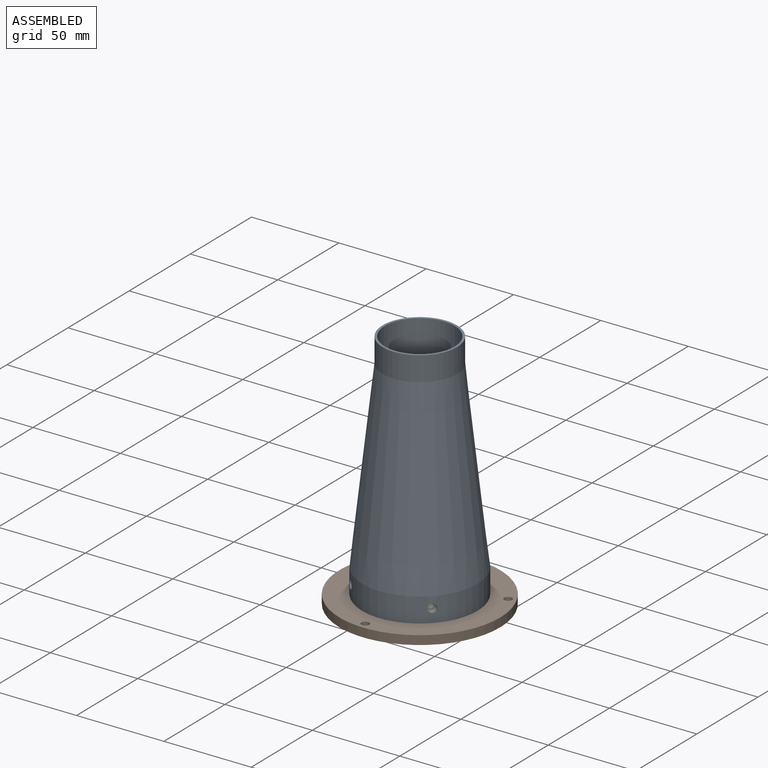
[diagram: assembled view]
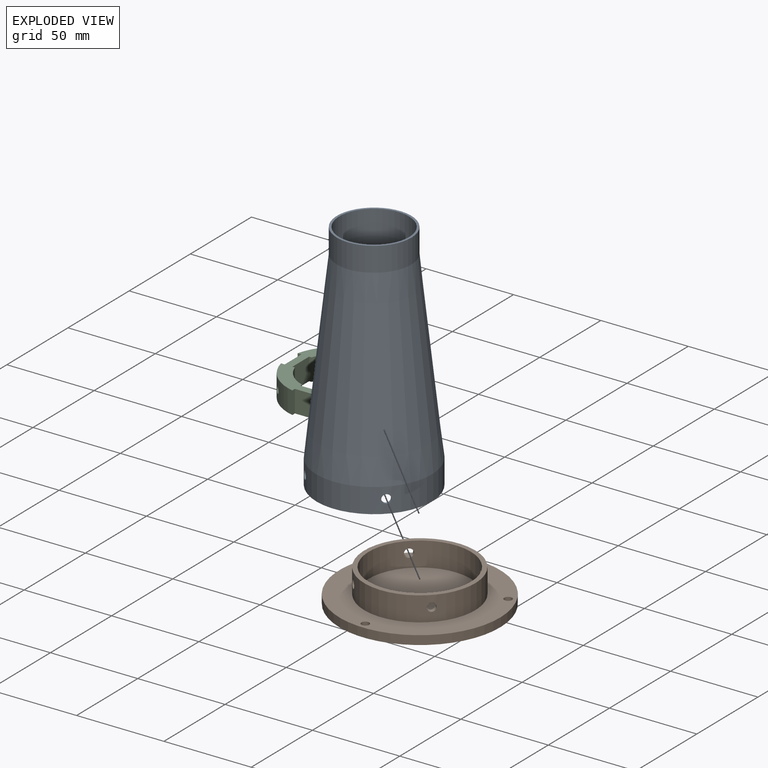
[diagram: exploded view]
GUIDED TOUR — MATED ASSEMBLY (Onshape document 5718db50e4b03b300af6a000, AutoMate assembly 5718db50e4b03b300af6a000_2acc3f7f72f55cf01bb2b59f_ec2c4723e21bfdde87397d73_default)

This assembly has 3 components, labeled P0..P2 below (a component is one placed occurrence of a part; the same part can appear more than once), held together by 4 mates. A mate is a constraint between two components; its type names the relative motion it leaves free:
  CYLINDRICAL — leaves both rotation about and translation along the listed axis free.
Axis/direction vectors are unit vectors and 'through' points are millimeter coordinates, both in the assembly's world frame.

MATES
  1. CYLINDRICAL "Cylindrical 2": P1 <-> P2, axis (0.707, -0.707, 0.000) through (-13.35, -33.52, -79.23) mm
  2. CYLINDRICAL "Cylindrical 3": P0 <-> P1, axis (-0.707, 0.707, 0.000) through (-12.46, -34.41, -79.23) mm
  3. CYLINDRICAL "Cylindrical 1": P2 <-> P1, axis (0.000, 0.000, -1.000) through (-35.82, -11.05, -79.23) mm
  4. CYLINDRICAL "Cylindrical 4": P0 <-> P1, axis (0.000, 0.000, -1.000) through (-35.82, -11.05, -79.90) mm

ASSEMBLY ORDER
  1. P1 — the base component [order heuristic]
  2. P0 [order heuristic]
  3. P2 [order heuristic]
Order-tag legend:
  [order heuristic] — this assembly is geometrically interlocked (no collision-free removal order exists), so components are listed in mate-graph order; insertion feasibility is not verified.

Of the 3 components, 3 carry the full construction recipe — the FeatureScript program that regenerates the part's solid from scratch; the rest are supplied as boundary geometry only.
Each toured component is shown spotlighted twice — in the assembled view, then in the exploded view, where a leader line traces a displaced component back to its assembled socket (saturated green if recipe-attached, orange if geometry-only; every other component desaturated gray) — followed by its recipe or geometry summary and the mates that hold it.
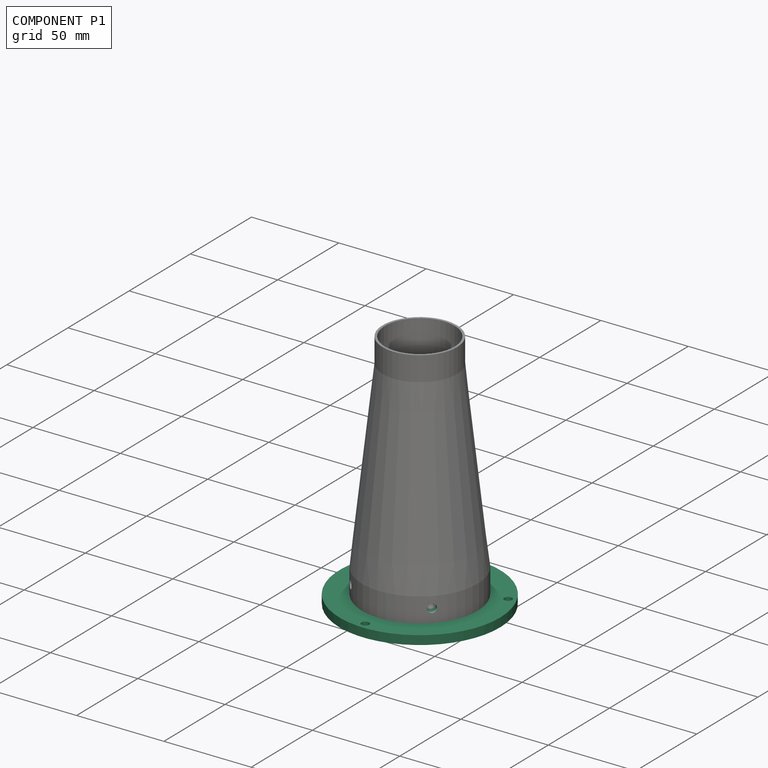
[diagram: component P1 — assembled]
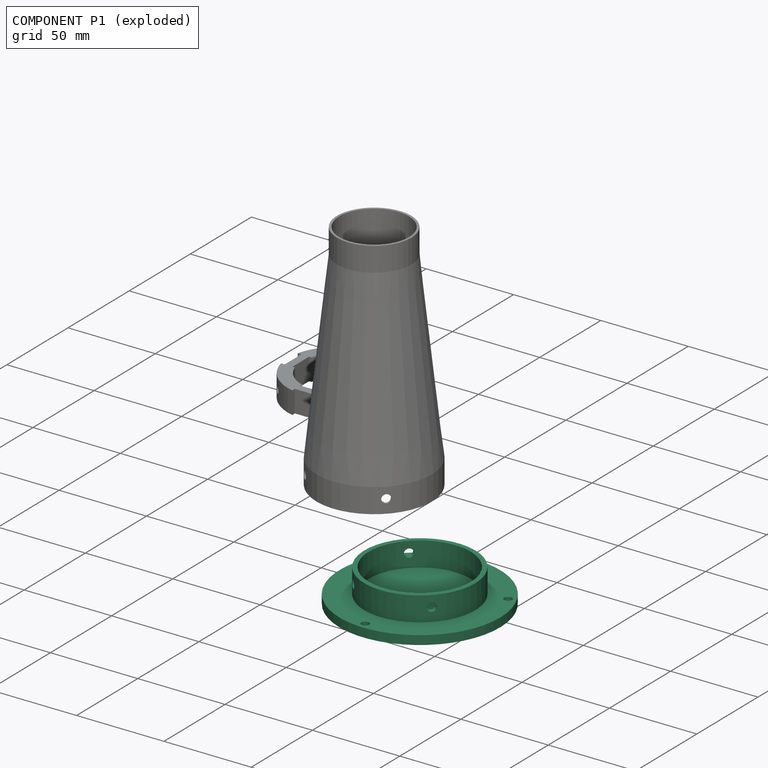
[diagram: component P1 — exploded]
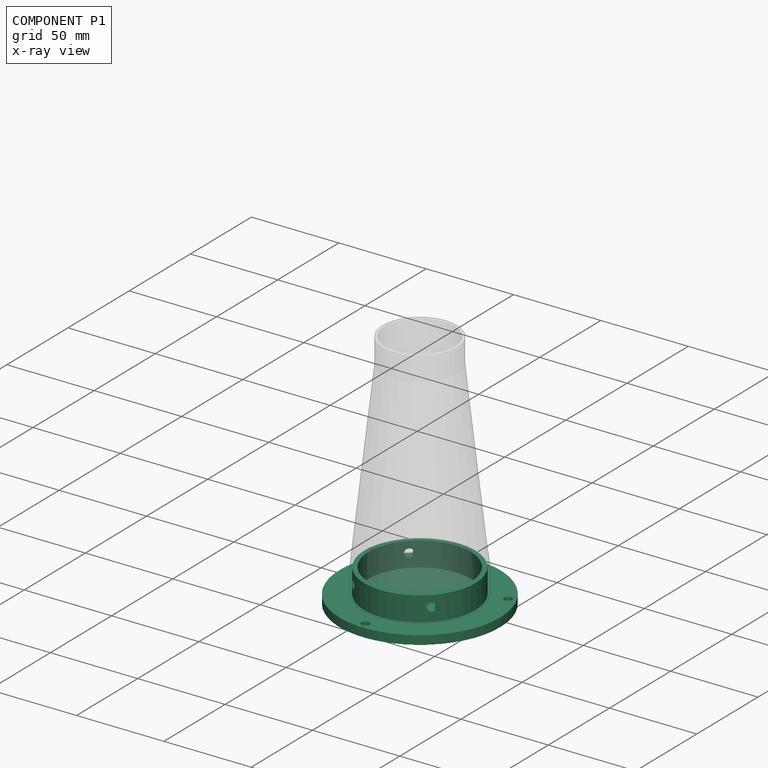
[diagram: component P1 — x-ray view]
COMPONENT P1 — recipe-attached (CADFS 00136870, mesh-verified: the recipe's output STEP matches this component's geometry to below the mesh-comparison resolution (tessellation chordal tolerance ~0.197 mm)).
Held by: CYLINDRICAL mate "Cylindrical 2" to P2; CYLINDRICAL mate "Cylindrical 3" to P0; CYLINDRICAL mate "Cylindrical 1" to P2; CYLINDRICAL mate "Cylindrical 4" to P0.
Construction recipe (FeatureScript — the CAD program that rebuilds this solid; sketch coordinates are in the units given by the * unit suffixes, e.g. mm):

FeatureScript 1511;
import(path : "onshape/std/geometry.fs", version : "1511.0");
import(path : "onshape/std/common.fs", version : "1511.0");
const mm = millimeter;
const VERTEX = EntityType.VERTEX;
const EDGE = EntityType.EDGE;
const FACE = EntityType.FACE;
const BODY = EntityType.BODY;
function v(x, y){return vector(x, y);}
function OD(order){return orderDisambiguation(order);}
function OSD(set){return originalSetDisambiguation(set);}
function TD(topology){return topologyDisambiguation(topology);}
function TDD(query){return trueDependencyDisambiguation(query);}
function sQuery(a, b, c) {return sketchEntityQuery(a, b, c);}

annotation { "Feature Type Name" : "Feature", "Feature Type Description" : "" }
export const myFeature = defineFeature(function(context is Context, id is Id, definition is map)
    precondition{}
    {
        {
            var Q0;
            Q0=qCreatedBy(makeId("Top.planeOp"),FACE);
            var sketch = newSketch(context, id + "F0", { "sketchPlane" : qUnion([Q0])});
            skCircle(sketch, "E0", {"center": v(0, 0) * mm, "radius": 29.21 * mm});
            skCircle(sketch, "E1", {"center": v(0, 0) * mm, "radius": 31.75 * mm});
            skSolve(sketch);
        }
        {
            var Q0;
            Q0=qSketchRegion(id+"F0",true);
            extrude(context, id + "F1", {"entities" : qUnion([Q0]), "depth" : 13.97 * mm});
        }
        {
            var Q0;
            Q0=qCreatedBy(makeId("Top.planeOp"),FACE);
            var sketch = newSketch(context, id + "F2", { "sketchPlane" : qUnion([Q0])});
            skLineSegment(sketch, "E2.bottom", {"start": v(44.45, -2.54) * mm, "end": v(-44.45, -2.54) * mm});
            skLineSegment(sketch, "E2.top", {"start": v(44.45, 2.54) * mm, "end": v(-44.45, 2.54) * mm});
            skLineSegment(sketch, "E2.left", {"start": v(44.45, -2.54) * mm, "end": v(44.45, 2.54) * mm});
            skLineSegment(sketch, "E2.right", {"start": v(-44.45, -2.54) * mm, "end": v(-44.45, 2.54) * mm});
            skPoint(sketch, "E2.middle", {"position": v(0, 0) * mm});
            skLineSegment(sketch, "E3", {"start": v(-31.65, 2.54) * mm, "end": v(-31.65, -2.54) * mm});
            skLineSegment(sketch, "E4", {"start": v(31.65, 2.54) * mm, "end": v(31.65, -2.54) * mm});
            skSolve(sketch);
        }
        {
            var Q0;
            Q0=qCreatedBy(makeId("Top.planeOp"),FACE);
            var sketch = newSketch(context, id + "F3", { "sketchPlane" : qUnion([Q0])});
            skLineSegment(sketch, "E5.bottom", {"start": v(-60.23, 0) * mm, "end": v(63.71, 0) * mm});
            skLineSegment(sketch, "E5.top", {"start": v(-60.23, -73.9) * mm, "end": v(63.71, -73.9) * mm});
            skLineSegment(sketch, "E5.left", {"start": v(-60.23, 0) * mm, "end": v(-60.23, -73.9) * mm});
            skLineSegment(sketch, "E5.right", {"start": v(63.71, 0) * mm, "end": v(63.71, -73.9) * mm});
            skSolve(sketch);
        }
        {
            var Q0;
            Q0=qCreatedBy(makeId("Top.planeOp"),FACE);
            var sketch = newSketch(context, id + "F4", { "sketchPlane" : qUnion([Q0])});
            skCircle(sketch, "E6", {"center": v(0, 0) * mm, "radius": 45.97 * mm});
            skSolve(sketch);
        }
        {
            var Q0;
            Q0=qSketchRegion(id+"F4",true);
            extrude(context, id + "F5", {"entities" : qUnion([Q0]), "operationType" : NewBodyOperationType.ADD, "oppositeDirection" : true, "depth" : 5.08 * mm});
        }
        {
            var Q0;
            Q0=qCreatedBy(makeId("Front.planeOp"),FACE);
            var sketch = newSketch(context, id + "F6", { "sketchPlane" : qUnion([Q0])});
            skCircle(sketch, "E7", {"center": v(0, 7.62) * mm, "radius": 2.41 * mm});
            skSolve(sketch);
        }
        {
            var Q0;
            Q0=qSketchRegion(id+"F6",true);
            extrude(context, id + "F7", {"entities" : qUnion([Q0]), "operationType" : NewBodyOperationType.REMOVE, "endBound" : BoundingType.SYMMETRIC, "oppositeDirection" : true, "depth" : 76.2 * mm});
        }
        {
            var Q0;
            {var subQ6=sQuery(id+"F4.wireOp",EDGE,"E6");Q0=makeQuery(id+"FT47Tx4rUoxAfJh_1.opDraft","SPLIT",FACE,{"disambiguationData":[OD(1.0)],"derivedFrom":makeQuery(id+"F5.boolean.opBoolean","SPLIT",FACE,{"disambiguationData":[TD([makeQuery(id+"F1.opExtrude","SWEPT_FACE",FACE,{"disambiguationData":[OSD([sQuery(id+"F0.wireOp",EDGE,"E1")])]})])],"derivedFrom":makeQuery(id+"F5.opExtrude","CAP_FACE",FACE,{"disambiguationData":[OSD([subQ6])],"isStart":true})})});}
            var sketch = newSketch(context, id + "F8", { "sketchPlane" : qUnion([Q0])});
            skPoint(sketch, "E8", {"position": v(-8.9, 40.83) * mm});
            skPoint(sketch, "E9.1.0", {"position": v(-30.91, -28.11) * mm});
            skPoint(sketch, "E9.2.0", {"position": v(39.8, -12.71) * mm});
            skPoint(sketch, "E9.center", {"position": v(0, 0) * mm});
            skSolve(sketch);
        }
        {
            var Q0;
            Q0=sQuery(id+"F8.wireOp",VERTEX,"E8");
            var Q1;
            Q1=sQuery(id+"F8.wireOp",VERTEX,"E9.1.0");
            var Q2;
            Q2=sQuery(id+"F8.wireOp",VERTEX,"E9.2.0");
            var Q3;
            Q3=makeQuery(id+"F1.opExtrude","SWEPT_BODY",BODY,{"disambiguationData":[OSD([sQuery(id+"F0.wireOp",EDGE,"E0"),sQuery(id+"F0.wireOp",EDGE,"E1")])]});
            hole(context, id + "F9", {"style" : HoleStyle.SIMPLE, "endStyle" : HoleEndStyle.BLIND, "holeDiameter" : 4.44 * mm, "holeDepth" : 12.7 * mm, "tappedDepth" : 12.7 * mm, "tapClearance" : 3, "startFromSketch" : true, "locations" : qUnion([Q0, Q1, Q2]), "scope" : qUnion([Q3])});
        }
        {
            var Q0;
            Q0=qCreatedBy(makeId("Right.planeOp"),FACE);
            var sketch = newSketch(context, id + "F10", { "sketchPlane" : qUnion([Q0])});
            skCircle(sketch, "E10", {"center": v(0, 7.62) * mm, "radius": 2.41 * mm});
            skSolve(sketch);
        }
        {
            var Q0;
            Q0 = qSketchRegion(id + "F10", true);
            extrude(context, id + "F11", {"entities" : qUnion([Q0]), "operationType" : NewBodyOperationType.REMOVE, "endBound" : BoundingType.SYMMETRIC, "oppositeDirection" : true, "depth" : 101.6 * mm});
        }
    });
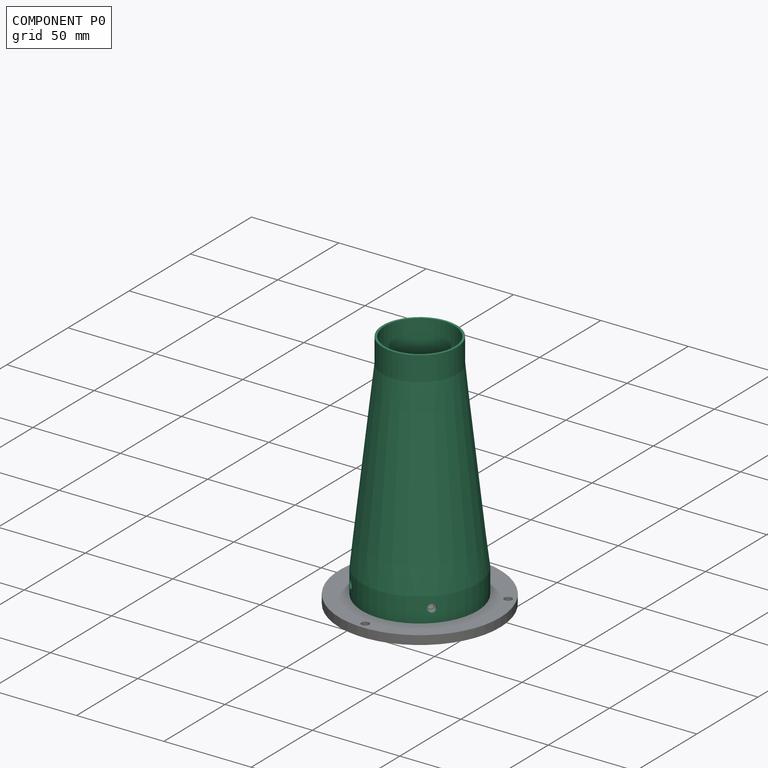
[diagram: component P0 — assembled]
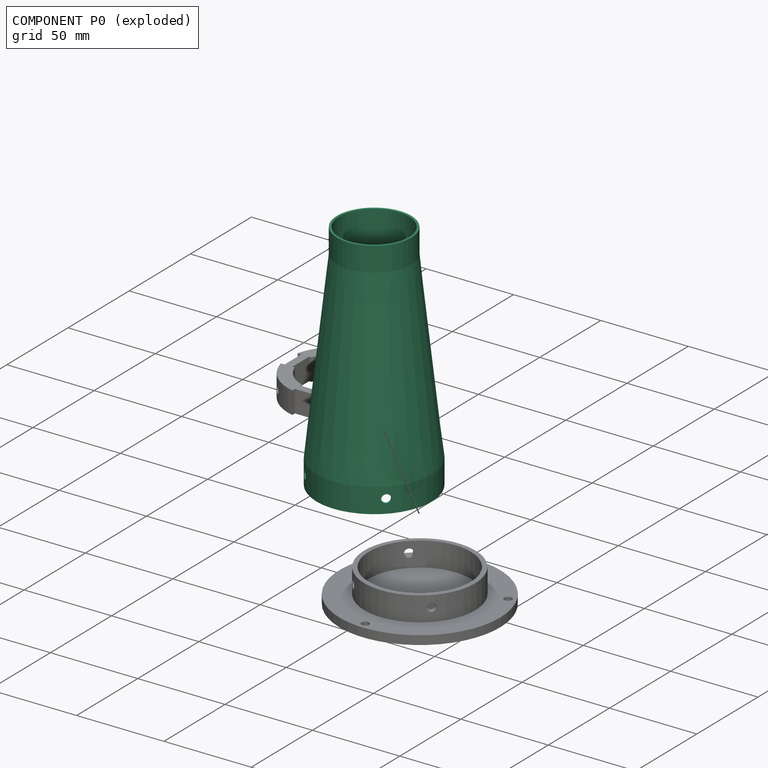
[diagram: component P0 — exploded]
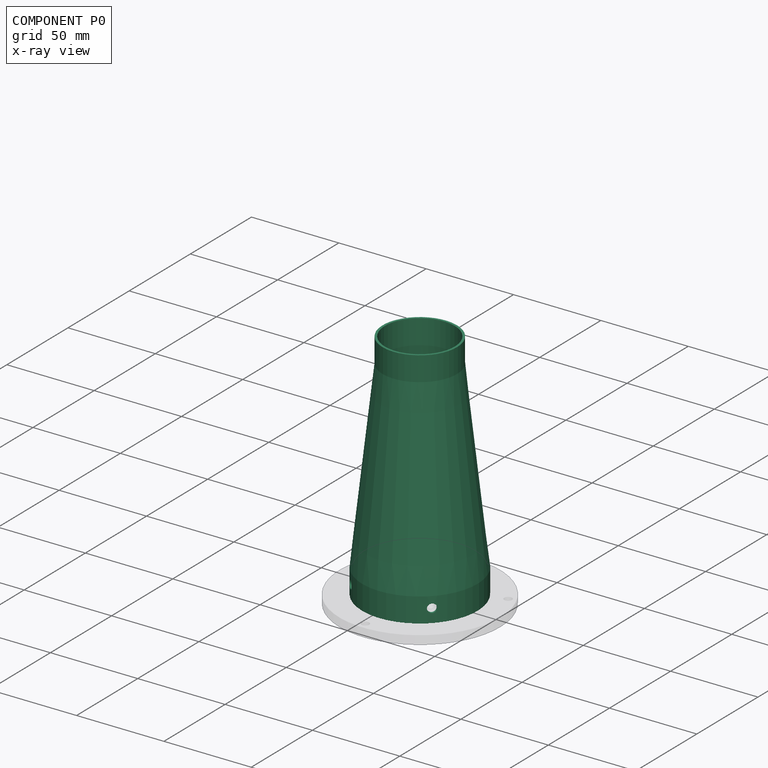
[diagram: component P0 — x-ray view]
COMPONENT P0 — recipe-attached (CADFS 00136868, mesh-verified: the recipe's output STEP matches this component's geometry to below the mesh-comparison resolution (tessellation chordal tolerance ~0.244 mm)).
Held by: CYLINDRICAL mate "Cylindrical 3" to P1; CYLINDRICAL mate "Cylindrical 4" to P1.
Construction recipe (FeatureScript — the CAD program that rebuilds this solid; sketch coordinates are in the units given by the * unit suffixes, e.g. mm):

FeatureScript 1511;
import(path : "onshape/std/geometry.fs", version : "1511.0");
import(path : "onshape/std/common.fs", version : "1511.0");
const mm = millimeter;
const VERTEX = EntityType.VERTEX;
const EDGE = EntityType.EDGE;
const FACE = EntityType.FACE;
const BODY = EntityType.BODY;
function v(x, y){return vector(x, y);}
function OD(order){return orderDisambiguation(order);}
function OSD(set){return originalSetDisambiguation(set);}
function TD(topology){return topologyDisambiguation(topology);}
function TDD(query){return trueDependencyDisambiguation(query);}
function sQuery(a, b, c) {return sketchEntityQuery(a, b, c);}

annotation { "Feature Type Name" : "Feature", "Feature Type Description" : "" }
export const myFeature = defineFeature(function(context is Context, id is Id, definition is map)
    precondition{}
    {
        {
            var Q0;
            Q0=qCreatedBy(makeId("Front.planeOp"),FACE);
            var sketch = newSketch(context, id + "F0", { "sketchPlane" : qUnion([Q0])});
            skLineSegment(sketch, "E0", {"start": v(31.75, 0) * mm, "end": v(31.75, 13.97) * mm});
            skLineSegment(sketch, "E1", {"start": v(31.75, 13.97) * mm, "end": v(20, 119.38) * mm});
            skLineSegment(sketch, "E2", {"start": v(20, 119.38) * mm, "end": v(20, 133.35) * mm});
            skLineSegment(sketch, "E3.0", {"start": v(21.27, 119.45) * mm, "end": v(21.27, 133.35) * mm});
            skLineSegment(sketch, "E3.1", {"start": v(33.02, 14.04) * mm, "end": v(21.27, 119.45) * mm});
            skLineSegment(sketch, "E3.2", {"start": v(33.02, 0) * mm, "end": v(33.02, 14.04) * mm});
            skLineSegment(sketch, "E4", {"start": v(20, 133.35) * mm, "end": v(21.27, 133.35) * mm});
            skLineSegment(sketch, "E5", {"start": v(31.75, 0) * mm, "end": v(33.02, 0) * mm});
            skLineSegment(sketch, "E6", {"start": v(0, 0) * mm, "end": v(0, 49.91) * mm, "construction": true});
            skSolve(sketch);
        }
        {
            var Q0;
            Q0=makeQuery(id+"F0.imprint","IMPRINT",FACE,{"disambiguationData":[TD([[makeQuery(id+"F0.imprint","IMPRINT",EDGE,{"derivedFrom":sQuery(id+"F0.wireOp",EDGE,"E0")}),-1.0]])]});
            var Q1;
            Q1=sQuery(id+"F0.wireOp",EDGE,"E3.1");
            var Q2;
            Q2=sQuery(id+"F0.wireOp",EDGE,"E3.2");
            var Q3;
            Q3=sQuery(id+"F0.wireOp",EDGE,"E3.0");
            var Q4;
            Q4=sQuery(id+"F0.wireOp",EDGE,"E2");
            var Q5;
            Q5=sQuery(id+"F0.wireOp",EDGE,"E1");
            var Q6;
            Q6=sQuery(id+"F0.wireOp",EDGE,"E0");
            var Q7;
            Q7=sQuery(id+"F0.wireOp",EDGE,"E5");
            var Q8;
            Q8=sQuery(id+"F0.wireOp",EDGE,"E4");
            var Q9;
            Q9=sQuery(id+"F0.wireOp",EDGE,"E6");
            revolve(context, id + "F1", {"entities" : qUnion([Q0]), "surfaceEntities" : qUnion([Q1, Q2, Q3, Q4, Q5, Q6, Q7, Q8]), "axis" : qUnion([Q9]), "revolveType" : RevolveType.FULL});
        }
        {
            var Q0;
            Q0=qCreatedBy(makeId("Front.planeOp"),FACE);
            var sketch = newSketch(context, id + "F2", { "sketchPlane" : qUnion([Q0])});
            skCircle(sketch, "E7", {"center": v(0, 7.7) * mm, "radius": 2.41 * mm});
            skSolve(sketch);
        }
        {
            var Q0;
            Q0=qCreatedBy(makeId("Right.planeOp"),FACE);
            var sketch = newSketch(context, id + "F3", { "sketchPlane" : qUnion([Q0])});
            skCircle(sketch, "E8", {"center": v(0, 7.7) * mm, "radius": 2.41 * mm});
            skSolve(sketch);
        }
        {
            var Q0;
            Q0 = qSketchRegion(id + "F2", true);
            extrude(context, id + "F4", {"entities" : qUnion([Q0]), "operationType" : NewBodyOperationType.REMOVE, "endBound" : BoundingType.SYMMETRIC, "depth" : 101.6 * mm});
        }
        {
            var Q0;
            Q0 = qSketchRegion(id + "F3", true);
            extrude(context, id + "F5", {"entities" : qUnion([Q0]), "operationType" : NewBodyOperationType.REMOVE, "endBound" : BoundingType.SYMMETRIC, "oppositeDirection" : true, "depth" : 101.6 * mm});
        }
    });
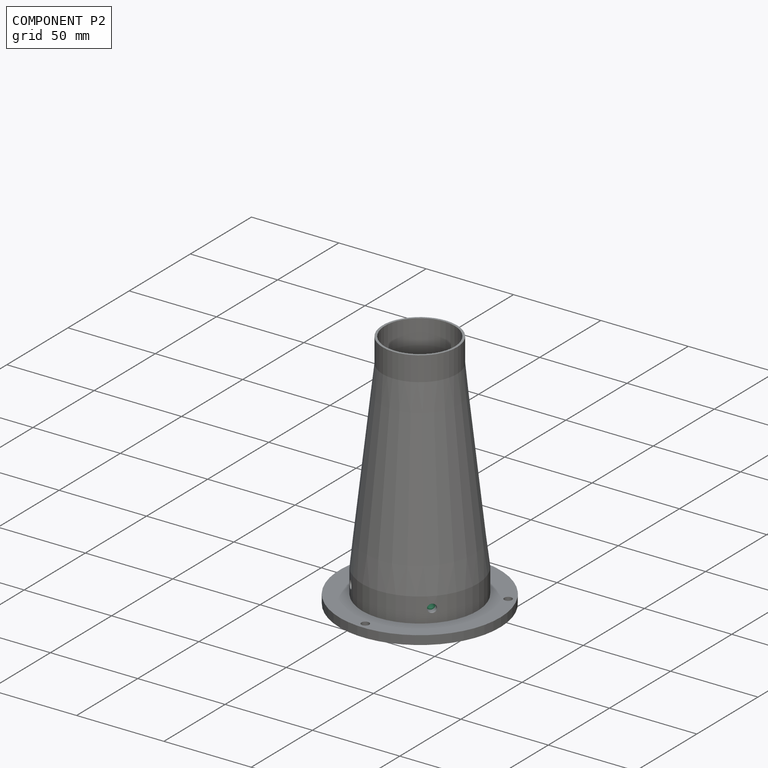
[diagram: component P2 — assembled]
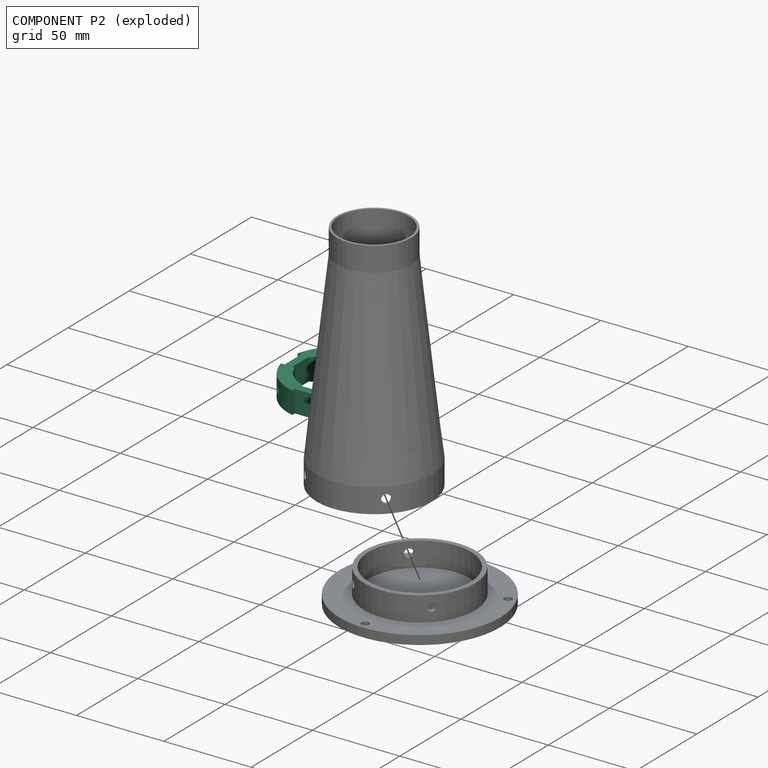
[diagram: component P2 — exploded]
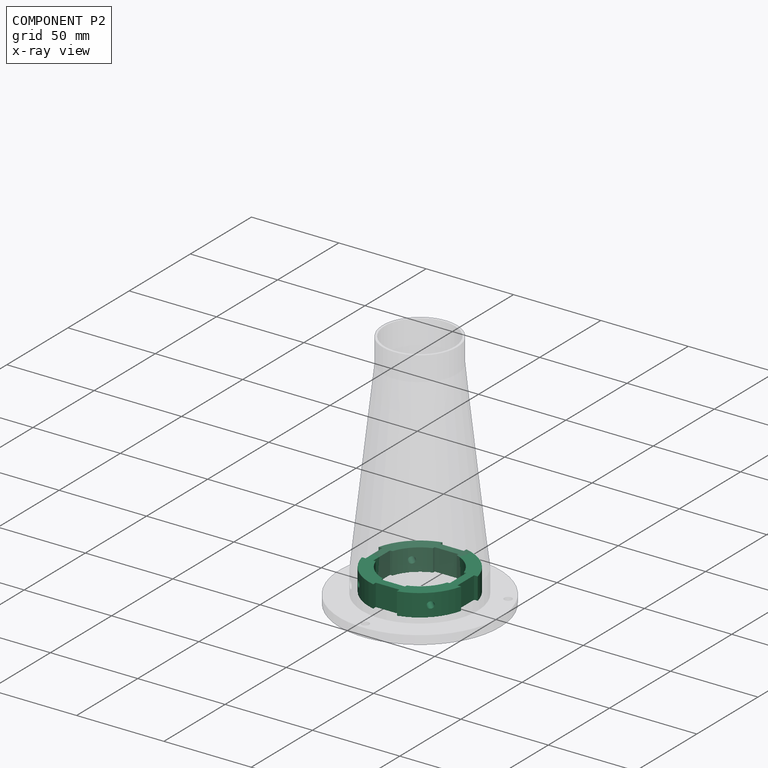
[diagram: component P2 — x-ray view]
COMPONENT P2 — recipe-attached (CADFS 00136867, mesh-verified: the recipe's output STEP matches this component's geometry to below the mesh-comparison resolution (tessellation chordal tolerance ~0.122 mm)).
Held by: CYLINDRICAL mate "Cylindrical 2" to P1; CYLINDRICAL mate "Cylindrical 1" to P1.
Construction recipe (FeatureScript — the CAD program that rebuilds this solid; sketch coordinates are in the units given by the * unit suffixes, e.g. mm):

FeatureScript 1511;
import(path : "onshape/std/geometry.fs", version : "1511.0");
import(path : "onshape/std/common.fs", version : "1511.0");
const mm = millimeter;
const VERTEX = EntityType.VERTEX;
const EDGE = EntityType.EDGE;
const FACE = EntityType.FACE;
const BODY = EntityType.BODY;
function v(x, y){return vector(x, y);}
function OD(order){return orderDisambiguation(order);}
function OSD(set){return originalSetDisambiguation(set);}
function TD(topology){return topologyDisambiguation(topology);}
function TDD(query){return trueDependencyDisambiguation(query);}
function sQuery(a, b, c) {return sketchEntityQuery(a, b, c);}

annotation { "Feature Type Name" : "Feature", "Feature Type Description" : "" }
export const myFeature = defineFeature(function(context is Context, id is Id, definition is map)
    precondition{}
    {
        {
            var Q0;
            Q0=qCreatedBy(makeId("Top.planeOp"),FACE);
            var sketch = newSketch(context, id + "F0", { "sketchPlane" : qUnion([Q0])});
            skCircle(sketch, "E0", {"center": v(0, 0) * mm, "radius": 21.59 * mm});
            skCircle(sketch, "E1", {"center": v(0, 0) * mm, "radius": 29.21 * mm});
            skSolve(sketch);
        }
        {
            var Q0;
            Q0=makeQuery(id+"F0.imprint","IMPRINT",FACE,{"disambiguationData":[TD([[makeQuery(id+"F0.imprint","IMPRINT",EDGE,{"derivedFrom":sQuery(id+"F0.wireOp",EDGE,"E0")}),-1.0]])]});
            extrude(context, id + "F1", {"entities" : qUnion([Q0]), "depth" : 12.7 * mm});
        }
        {
            var Q0;
            Q0=makeQuery(id+"F1.opExtrude","CAP_FACE",FACE,{"disambiguationData":[OSD([sQuery(id+"F0.wireOp",EDGE,"E0"),sQuery(id+"F0.wireOp",EDGE,"E1")])],"isStart":false});
            var sketch = newSketch(context, id + "F2", { "sketchPlane" : qUnion([Q0])});
            skLineSegment(sketch, "E2.bottom", {"start": v(6.8, 18.29) * mm, "end": v(-6.8, 18.29) * mm});
            skLineSegment(sketch, "E2.top", {"start": v(6.8, 21.84) * mm, "end": v(-6.8, 21.84) * mm});
            skLineSegment(sketch, "E2.left", {"start": v(6.8, 18.29) * mm, "end": v(6.8, 21.84) * mm});
            skLineSegment(sketch, "E2.right", {"start": v(-6.8, 18.29) * mm, "end": v(-6.8, 21.84) * mm});
            skPoint(sketch, "E2.middle", {"position": v(0, 20.07) * mm});
            skLineSegment(sketch, "E3.bottom", {"start": v(6.8, 26.29) * mm, "end": v(-6.8, 26.29) * mm});
            skLineSegment(sketch, "E3.top", {"start": v(6.8, 29.85) * mm, "end": v(-6.8, 29.85) * mm});
            skLineSegment(sketch, "E3.left", {"start": v(6.8, 26.29) * mm, "end": v(6.8, 29.85) * mm});
            skLineSegment(sketch, "E3.right", {"start": v(-6.8, 26.29) * mm, "end": v(-6.8, 29.85) * mm});
            skPoint(sketch, "E3.middle", {"position": v(0, 28.07) * mm});
            skPoint(sketch, "E4.1.0", {"position": v(-20.07, 0) * mm});
            skLineSegment(sketch, "E4.1.1", {"start": v(-18.29, 6.8) * mm, "end": v(-21.84, 6.8) * mm});
            skLineSegment(sketch, "E4.1.2", {"start": v(-26.29, 6.8) * mm, "end": v(-29.85, 6.8) * mm});
            skLineSegment(sketch, "E4.1.3", {"start": v(-26.29, 6.8) * mm, "end": v(-26.29, -6.8) * mm});
            skLineSegment(sketch, "E4.1.4", {"start": v(-18.29, -6.8) * mm, "end": v(-21.84, -6.8) * mm});
            skLineSegment(sketch, "E4.1.5", {"start": v(-21.84, 6.8) * mm, "end": v(-21.84, -6.8) * mm});
            skLineSegment(sketch, "E4.1.6", {"start": v(-29.85, 6.8) * mm, "end": v(-29.84, -6.8) * mm});
            skLineSegment(sketch, "E4.1.7", {"start": v(-26.29, -6.8) * mm, "end": v(-29.85, -6.8) * mm});
            skPoint(sketch, "E4.1.8", {"position": v(-28.07, 0) * mm});
            skLineSegment(sketch, "E4.1.9", {"start": v(-18.29, 6.8) * mm, "end": v(-18.29, -6.8) * mm});
            skPoint(sketch, "E4.2.0", {"position": v(0, -20.07) * mm});
            skLineSegment(sketch, "E4.2.1", {"start": v(-6.8, -18.29) * mm, "end": v(-6.8, -21.84) * mm});
            skLineSegment(sketch, "E4.2.2", {"start": v(-6.8, -26.29) * mm, "end": v(-6.8, -29.85) * mm});
            skLineSegment(sketch, "E4.2.3", {"start": v(-6.8, -26.29) * mm, "end": v(6.8, -26.29) * mm});
            skLineSegment(sketch, "E4.2.4", {"start": v(6.8, -18.29) * mm, "end": v(6.8, -21.84) * mm});
            skLineSegment(sketch, "E4.2.5", {"start": v(-6.8, -21.84) * mm, "end": v(6.8, -21.84) * mm});
            skLineSegment(sketch, "E4.2.6", {"start": v(-6.8, -29.85) * mm, "end": v(6.8, -29.85) * mm});
            skLineSegment(sketch, "E4.2.7", {"start": v(6.8, -26.29) * mm, "end": v(6.8, -29.85) * mm});
            skPoint(sketch, "E4.2.8", {"position": v(0, -28.07) * mm});
            skLineSegment(sketch, "E4.2.9", {"start": v(-6.8, -18.29) * mm, "end": v(6.8, -18.29) * mm});
            skPoint(sketch, "E4.3.0", {"position": v(20.07, 0) * mm});
            skLineSegment(sketch, "E4.3.1", {"start": v(18.29, -6.8) * mm, "end": v(21.84, -6.8) * mm});
            skLineSegment(sketch, "E4.3.2", {"start": v(26.29, -6.8) * mm, "end": v(29.85, -6.8) * mm});
            skLineSegment(sketch, "E4.3.3", {"start": v(26.29, -6.8) * mm, "end": v(26.29, 6.8) * mm});
            skLineSegment(sketch, "E4.3.4", {"start": v(18.29, 6.8) * mm, "end": v(21.84, 6.8) * mm});
            skLineSegment(sketch, "E4.3.5", {"start": v(21.84, -6.8) * mm, "end": v(21.84, 6.8) * mm});
            skLineSegment(sketch, "E4.3.6", {"start": v(29.85, -6.8) * mm, "end": v(29.85, 6.8) * mm});
            skLineSegment(sketch, "E4.3.7", {"start": v(26.29, 6.8) * mm, "end": v(29.85, 6.8) * mm});
            skPoint(sketch, "E4.3.8", {"position": v(28.07, 0) * mm});
            skLineSegment(sketch, "E4.3.9", {"start": v(18.29, -6.8) * mm, "end": v(18.29, 6.8) * mm});
            skPoint(sketch, "E4.center", {"position": v(0, 0) * mm});
            skSolve(sketch);
        }
        {
            var Q0;
            Q0 = qSketchRegion(id + "F2", true);
            extrude(context, id + "F3", {"entities" : qUnion([Q0]), "operationType" : NewBodyOperationType.REMOVE, "oppositeDirection" : true, "depth" : 25.4 * mm});
        }
        {
            var Q0;
            {var subQ0=sQuery(id+"F0.wireOp",EDGE,"E0");Q0=makeQuery(id+"F3.boolean.opBoolean","SPLIT",EDGE,{"disambiguationData":[TD([makeQuery(id+"F3.opExtrude","SWEPT_FACE",FACE,{"disambiguationData":[OSD([sQuery(id+"F2.wireOp",EDGE,"E4.1.4")])]})])],"derivedFrom":makeQuery(id+"F1.opExtrude","CAP_EDGE",EDGE,{"disambiguationData":[OSD([subQ0])],"isStart":false})});}
            cPoint(context, id + "F4", {"entities" : qUnion([Q0]), "parameter" : 0.5});
        }
        {
            var Q0;
            {var subQ0=sQuery(id+"F0.wireOp",EDGE,"E0");Q0=makeQuery(id+"F3.boolean.opBoolean","SPLIT",EDGE,{"disambiguationData":[TD([makeQuery(id+"F3.opExtrude","SWEPT_FACE",FACE,{"disambiguationData":[OSD([sQuery(id+"F2.wireOp",EDGE,"E2.left")])]})])],"derivedFrom":makeQuery(id+"F1.opExtrude","CAP_EDGE",EDGE,{"disambiguationData":[OSD([subQ0])],"isStart":false})});}
            cPoint(context, id + "F5", {"entities" : qUnion([Q0]), "parameter" : 0.5});
        }
        {
            var Q0;
            Q0=qCreatedBy(makeId("Origin.pointOp"),VERTEX);
            var Q1;
            Q1 = qCreatedBy(id + "F4" ,VERTEX);
            var Q2;
            Q2 = qCreatedBy(id + "F5" ,VERTEX);
            cPlane(context, id + "F6", {"entities" : qUnion([Q0, Q1, Q2]), "cplaneType" : CPlaneType.THREE_POINT, "offset" : 25.4 * mm, "width" : 152.4 * mm, "height" : 152.4 * mm});
        }
        {
            var Q0;
            Q0=qCreatedBy(id+"F6.planeOp",FACE);
            var sketch = newSketch(context, id + "F7", { "sketchPlane" : qUnion([Q0])});
            skCircle(sketch, "E5", {"center": v(0, 6.35) * mm, "radius": 1.9 * mm});
            skSolve(sketch);
        }
        {
            var Q0;
            Q0 = qSketchRegion(id + "F7", true);
            extrude(context, id + "F8", {"entities" : qUnion([Q0]), "operationType" : NewBodyOperationType.REMOVE, "endBound" : BoundingType.SYMMETRIC, "depth" : 787.4 * mm});
        }
        {
            var Q0;
            {var subQ0=sQuery(id+"F0.wireOp",EDGE,"E0");Q0=makeQuery(id+"F3.boolean.opBoolean","SPLIT",EDGE,{"disambiguationData":[TD([makeQuery(id+"F3.opExtrude","SWEPT_FACE",FACE,{"disambiguationData":[OSD([sQuery(id+"F2.wireOp",EDGE,"E4.2.4")])]})])],"derivedFrom":makeQuery(id+"F1.opExtrude","CAP_EDGE",EDGE,{"disambiguationData":[OSD([subQ0])],"isStart":false})});}
            cPoint(context, id + "F9", {"entities" : qUnion([Q0]), "parameter" : 0.5});
        }
        {
            var Q0;
            {var subQ0=sQuery(id+"F0.wireOp",EDGE,"E0");Q0=makeQuery(id+"F3.boolean.opBoolean","SPLIT",EDGE,{"disambiguationData":[TD([makeQuery(id+"F3.opExtrude","SWEPT_FACE",FACE,{"disambiguationData":[OSD([sQuery(id+"F2.wireOp",EDGE,"E2.right")])]})])],"derivedFrom":makeQuery(id+"F1.opExtrude","CAP_EDGE",EDGE,{"disambiguationData":[OSD([subQ0])],"isStart":false})});}
            cPoint(context, id + "F10", {"entities" : qUnion([Q0]), "parameter" : 0.5});
        }
        {
            var Q0;
            Q0 = qCreatedBy(id + "F9" ,VERTEX);
            var Q1;
            Q1 = qCreatedBy(id + "F10" ,VERTEX);
            var Q2;
            Q2=qCreatedBy(makeId("Origin.pointOp"),VERTEX);
            cPlane(context, id + "F11", {"entities" : qUnion([Q0, Q1, Q2]), "cplaneType" : CPlaneType.THREE_POINT, "offset" : 25.4 * mm, "width" : 152.4 * mm, "height" : 152.4 * mm});
        }
        {
            var Q0;
            Q0=qCreatedBy(id+"F11.planeOp",FACE);
            var sketch = newSketch(context, id + "F12", { "sketchPlane" : qUnion([Q0])});
            skCircle(sketch, "E6", {"center": v(0, 6.35) * mm, "radius": 1.9 * mm});
            skSolve(sketch);
        }
        {
            var Q0;
            Q0 = qSketchRegion(id + "F12", true);
            extrude(context, id + "F13", {"entities" : qUnion([Q0]), "operationType" : NewBodyOperationType.REMOVE, "endBound" : BoundingType.SYMMETRIC, "oppositeDirection" : true, "depth" : 76.2 * mm});
        }
    });
PROVENANCE & LICENSES
Assembly (occurrences, transforms, mates, per-part STEP geometry): AutoMate dataset, Zenodo record 7776208, CC0.
Construction recipes: CADFS (HuggingFace VladPyatov/CADFS, CC-BY-4.0, layered over the ABC dataset), FeatureScript reconstruction programs keyed by ABC model id.
Join: ABC meta listings map ABC model id -> Onshape documentId; within a shared document, parts are matched by geometric signature (bounding-box dims + volume at 0.1% relative tolerance, exact B-rep face/solid counts).
Verification: 3 of this assembly's 3 components carry a recipe attachment, and every attachment is mesh-verified: the CADFS STEP and the AutoMate member STEP were compared as meshes in their shared local frame (symmetric sampled-point-to-mesh distance); worst across the 3 attachments: below the mesh-comparison resolution (tessellation chordal tolerance ~0.244 mm) on a 163 mm part.
Renders: orthographic iso camera (az 35 / el 25); the floor grid conveys scale (grid pitch printed in each image; no ruler). In the exploded view each component is displaced by its stored offset vector: the offsets alone carry the explosion direction (mate normal/axis signs are not orientation cues and do not encode it), and separation distances are assigned per mate-chain, not proportionally to assembly-order depth.
